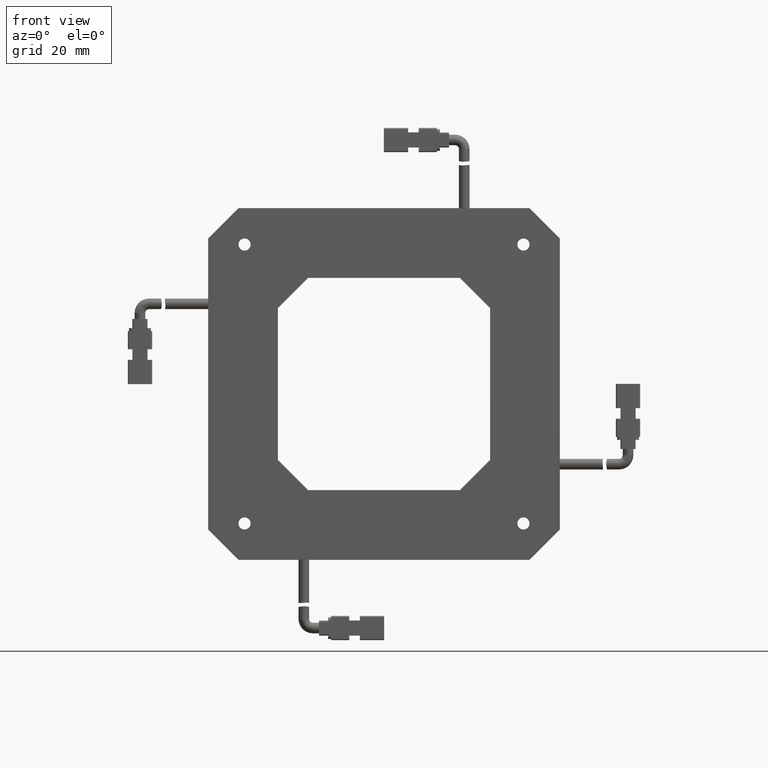
[diagram: clean part render]
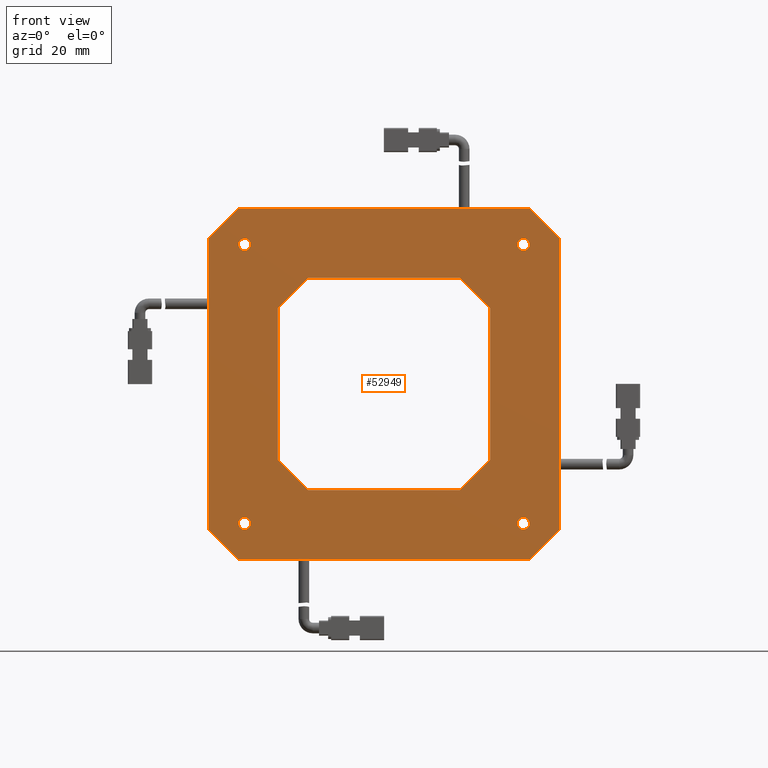
[diagram: same view with one face highlighted and labeled with its STEP entity id]
A machine part, front view. The second image highlights one B-rep face of the part: STEP entity #52949.
In plain terms, the highlighted planar face has unit normal (-0, -1, 0).
Its self-contained STEP definition (entity closure, byte-faithful):
#352 = CARTESIAN_POINT ( 'NONE',  ( -43.99999999999998600, -2.999999999999997300, -45.99999999999994300 ) ) ;
#799 = ORIENTED_EDGE ( 'NONE', *, *, #10398, .T. ) ;
#1731 = VERTEX_POINT ( 'NONE', #41590 ) ;
#1746 = CIRCLE ( 'NONE', #38907, 1.999999999999988000 ) ;
#1770 = AXIS2_PLACEMENT_3D ( 'NONE', #64085, #23416, #70861 ) ;
#1855 = AXIS2_PLACEMENT_3D ( 'NONE', #69324, #28721, #76096 ) ;
#2002 = CARTESIAN_POINT ( 'NONE',  ( -47.99999999999995700, -2.999999999999997300, 58.00000000000000700 ) ) ;
#2009 = CIRCLE ( 'NONE', #1855, 1.999999999999980900 ) ;
#3046 = LINE ( 'NONE', #71690, #70954 ) ;
#3352 = CARTESIAN_POINT ( 'NONE',  ( 44.00000000000002800, -3.000000000000002700, 45.99999999999996400 ) ) ;
#3486 = FACE_BOUND ( 'NONE', #12560, .T. ) ;
#3509 = VECTOR ( 'NONE', #28944, 1000.000000000000000 ) ;
#3535 = CARTESIAN_POINT ( 'NONE',  ( 44.00000000000002800, -3.000000000000002700, -45.99999999999996400 ) ) ;
#3848 = ORIENTED_EDGE ( 'NONE', *, *, #60590, .T. ) ;
#4416 = VECTOR ( 'NONE', #71666, 1000.000000000000000 ) ;
#5052 = EDGE_CURVE ( 'NONE', #63135, #72615, #2009, .T. ) ;
#5155 = EDGE_LOOP ( 'NONE', ( #27881, #61520 ) ) ;
#5632 = FACE_BOUND ( 'NONE', #61344, .T. ) ;
#5660 = LINE ( 'NONE', #55926, #3509 ) ;
#5911 = CARTESIAN_POINT ( 'NONE',  ( -34.99999999999999300, -2.999999999999998200, 25.00000000000001400 ) ) ;
#6114 = DIRECTION ( 'NONE',  ( -1.000000000000000000, 5.551115123125760500E-017, -7.885175750095784300E-018 ) ) ;
#6508 = DIRECTION ( 'NONE',  ( -1.000000000000000000, 0.0000000000000000000, 0.0000000000000000000 ) ) ;
#7317 = VERTEX_POINT ( 'NONE', #29171 ) ;
#7333 = CARTESIAN_POINT ( 'NONE',  ( -24.99999999999991100, -2.999999999999998700, 35.00000000000000000 ) ) ;
#7604 = CARTESIAN_POINT ( 'NONE',  ( 47.99999999999998600, -3.000000000000002700, 45.99999999999996400 ) ) ;
#8263 = VERTEX_POINT ( 'NONE', #352 ) ;
#8301 = VECTOR ( 'NONE', #54806, 1000.000000000000000 ) ;
#8871 = ORIENTED_EDGE ( 'NONE', *, *, #31235, .T. ) ;
#9109 = EDGE_LOOP ( 'NONE', ( #87759, #13671 ) ) ;
#9623 = CARTESIAN_POINT ( 'NONE',  ( -47.99999999999997200, -2.999999999999997300, 58.00000000000000700 ) ) ;
#10027 = VECTOR ( 'NONE', #79834, 1000.000000000000000 ) ;
#10398 = EDGE_CURVE ( 'NONE', #1731, #47372, #73803, .T. ) ;
#10404 = LINE ( 'NONE', #41147, #8301 ) ;
#11114 = CARTESIAN_POINT ( 'NONE',  ( 48.00000000000000700, -3.000000000000002700, 58.00000000000000700 ) ) ;
#12135 = DIRECTION ( 'NONE',  ( 5.551115123125761100E-017, 1.000000000000000000, -0.0000000000000000000 ) ) ;
#12286 = ORIENTED_EDGE ( 'NONE', *, *, #50918, .T. ) ;
#12560 = EDGE_LOOP ( 'NONE', ( #22120, #23089 ) ) ;
#12817 = EDGE_CURVE ( 'NONE', #42419, #70159, #1746, .T. ) ;
#12859 = ORIENTED_EDGE ( 'NONE', *, *, #48546, .T. ) ;
#13602 = CARTESIAN_POINT ( 'NONE',  ( -45.99999999999998600, -2.999999999999997300, -45.99999999999994300 ) ) ;
#13671 = ORIENTED_EDGE ( 'NONE', *, *, #5052, .T. ) ;
#13718 = VECTOR ( 'NONE', #37900, 1000.000000000000000 ) ;
#16219 = ORIENTED_EDGE ( 'NONE', *, *, #65367, .T. ) ;
#17291 = CARTESIAN_POINT ( 'NONE',  ( -46.00000000000000000, -2.999999999999997300, 45.99999999999992900 ) ) ;
#17409 = LINE ( 'NONE', #22162, #33306 ) ;
#17717 = LINE ( 'NONE', #57677, #87600 ) ;
#18604 = VERTEX_POINT ( 'NONE', #2002 ) ;
#18738 = CARTESIAN_POINT ( 'NONE',  ( 47.99999999999995700, -3.000000000000002700, -57.99999999999999300 ) ) ;
#20195 = LINE ( 'NONE', #9623, #56283 ) ;
#20416 = DIRECTION ( 'NONE',  ( -1.000000000000000000, 0.0000000000000000000, 0.0000000000000000000 ) ) ;
#21497 = EDGE_CURVE ( 'NONE', #8263, #58179, #49487, .T. ) ;
#21582 = FACE_BOUND ( 'NONE', #71923, .T. ) ;
#21944 = AXIS2_PLACEMENT_3D ( 'NONE', #73368, #32784, #80170 ) ;
#22120 = ORIENTED_EDGE ( 'NONE', *, *, #70951, .T. ) ;
#22162 = CARTESIAN_POINT ( 'NONE',  ( 35.00000000000002100, -3.000000000000001800, -25.00000000000001400 ) ) ;
#22567 = AXIS2_PLACEMENT_3D ( 'NONE', #17291, #64715, #24076 ) ;
#22867 = EDGE_CURVE ( 'NONE', #58376, #60661, #45789, .T. ) ;
#23089 = ORIENTED_EDGE ( 'NONE', *, *, #31037, .T. ) ;
#23416 = DIRECTION ( 'NONE',  ( 5.551115123125761100E-017, 1.000000000000000000, -0.0000000000000000000 ) ) ;
#23663 = AXIS2_PLACEMENT_3D ( 'NONE', #28291, #75673, #35080 ) ;
#24076 = DIRECTION ( 'NONE',  ( -1.000000000000000000, 0.0000000000000000000, 0.0000000000000000000 ) ) ;
#25051 = CARTESIAN_POINT ( 'NONE',  ( -34.99999999999999300, -2.999999999999998200, -24.99999999999995000 ) ) ;
#25568 = ORIENTED_EDGE ( 'NONE', *, *, #70107, .T. ) ;
#26888 = VECTOR ( 'NONE', #34101, 1000.000000000000000 ) ;
#27495 = DIRECTION ( 'NONE',  ( 7.885175750095784300E-018, -4.377151835486122500E-034, -1.000000000000000000 ) ) ;
#27805 = CARTESIAN_POINT ( 'NONE',  ( -57.99999999999997900, -2.999999999999996900, 58.00000000000000000 ) ) ;
#27881 = ORIENTED_EDGE ( 'NONE', *, *, #12817, .T. ) ;
#28124 = LINE ( 'NONE', #59426, #10027 ) ;
#28291 = CARTESIAN_POINT ( 'NONE',  ( -45.99999999999998600, -2.999999999999997300, -45.99999999999994300 ) ) ;
#28721 = DIRECTION ( 'NONE',  ( 5.551115123125761100E-017, 1.000000000000000000, -0.0000000000000000000 ) ) ;
#28944 = DIRECTION ( 'NONE',  ( 0.7071067811865441300, -3.925231146709404000E-017, -0.7071067811865510100 ) ) ;
#29000 = DIRECTION ( 'NONE',  ( -0.7071067811865510100, 3.925231146709441600E-017, -0.7071067811865441300 ) ) ;
#29041 = LINE ( 'NONE', #54253, #26888 ) ;
#29171 = CARTESIAN_POINT ( 'NONE',  ( 58.00000000000000700, -3.000000000000003100, 47.99999999999995700 ) ) ;
#29908 = VECTOR ( 'NONE', #83839, 1000.000000000000000 ) ;
#30444 = LINE ( 'NONE', #73699, #46320 ) ;
#30920 = ORIENTED_EDGE ( 'NONE', *, *, #86300, .T. ) ;
#31037 = EDGE_CURVE ( 'NONE', #54118, #74088, #83647, .T. ) ;
#31235 = EDGE_CURVE ( 'NONE', #44433, #68829, #10404, .T. ) ;
#32071 = VECTOR ( 'NONE', #87060, 1000.000000000000000 ) ;
#32433 = CARTESIAN_POINT ( 'NONE',  ( 35.00000000000001400, -3.000000000000001800, 24.99999999999996100 ) ) ;
#32578 = CARTESIAN_POINT ( 'NONE',  ( -46.00000000000000000, -2.999999999999997300, 45.99999999999992900 ) ) ;
#32784 = DIRECTION ( 'NONE',  ( -5.551115123125760500E-017, -1.000000000000000000, 0.0000000000000000000 ) ) ;
#33094 = EDGE_CURVE ( 'NONE', #40447, #58376, #86046, .T. ) ;
#33306 = VECTOR ( 'NONE', #29000, 1000.000000000000000 ) ;
#33962 = AXIS2_PLACEMENT_3D ( 'NONE', #87648, #47171, #6508 ) ;
#34101 = DIRECTION ( 'NONE',  ( -0.7071067811865445800, 3.925231146709405900E-017, 0.7071067811865504600 ) ) ;
#34640 = CARTESIAN_POINT ( 'NONE',  ( 48.00000000000000000, -3.000000000000002700, -45.99999999999996400 ) ) ;
#35080 = DIRECTION ( 'NONE',  ( -1.000000000000000000, 0.0000000000000000000, 0.0000000000000000000 ) ) ;
#36003 = ORIENTED_EDGE ( 'NONE', *, *, #41733, .T. ) ;
#36319 = EDGE_CURVE ( 'NONE', #72615, #63135, #44828, .T. ) ;
#37304 = CARTESIAN_POINT ( 'NONE',  ( 57.99999999999997900, -3.000000000000003100, 58.00000000000000700 ) ) ;
#37830 = EDGE_CURVE ( 'NONE', #70305, #70464, #29041, .T. ) ;
#37900 = DIRECTION ( 'NONE',  ( -1.000000000000000000, 5.551115123125760500E-017, -7.885175750095784300E-018 ) ) ;
#38907 = AXIS2_PLACEMENT_3D ( 'NONE', #52802, #12135, #59598 ) ;
#39393 = DIRECTION ( 'NONE',  ( -1.000000000000000000, 0.0000000000000000000, 0.0000000000000000000 ) ) ;
#40447 = VERTEX_POINT ( 'NONE', #81928 ) ;
#41147 = CARTESIAN_POINT ( 'NONE',  ( 35.00000000000001400, -3.000000000000001800, 58.00000000000000000 ) ) ;
#41590 = CARTESIAN_POINT ( 'NONE',  ( -57.99999999999997900, -2.999999999999996900, 48.00000000000004300 ) ) ;
#41650 = CARTESIAN_POINT ( 'NONE',  ( -48.00000000000000000, -2.999999999999997300, 45.99999999999992900 ) ) ;
#41733 = EDGE_CURVE ( 'NONE', #60661, #44433, #5660, .T. ) ;
#41766 = CARTESIAN_POINT ( 'NONE',  ( 58.00000000000000700, -3.000000000000003100, 47.99999999999996400 ) ) ;
#42240 = ORIENTED_EDGE ( 'NONE', *, *, #87157, .T. ) ;
#42419 = VERTEX_POINT ( 'NONE', #3535 ) ;
#43267 = CARTESIAN_POINT ( 'NONE',  ( 57.99999999999997900, -3.000000000000003100, 34.99999999999999300 ) ) ;
#44433 = VERTEX_POINT ( 'NONE', #32433 ) ;
#44828 = CIRCLE ( 'NONE', #1770, 1.999999999999980900 ) ;
#45789 = LINE ( 'NONE', #43267, #29908 ) ;
#45898 = VERTEX_POINT ( 'NONE', #83699 ) ;
#46128 = PLANE ( 'NONE',  #21944 ) ;
#46224 = CARTESIAN_POINT ( 'NONE',  ( -47.99999999999998600, -2.999999999999997300, -45.99999999999994300 ) ) ;
#46320 = VECTOR ( 'NONE', #6114, 1000.000000000000000 ) ;
#47171 = DIRECTION ( 'NONE',  ( 5.551115123125761100E-017, 1.000000000000000000, -0.0000000000000000000 ) ) ;
#47372 = VERTEX_POINT ( 'NONE', #67990 ) ;
#47685 = CIRCLE ( 'NONE', #33962, 1.999999999999988000 ) ;
#48546 = EDGE_CURVE ( 'NONE', #47372, #78118, #17717, .T. ) ;
#48782 = AXIS2_PLACEMENT_3D ( 'NONE', #13602, #61055, #20416 ) ;
#49487 = CIRCLE ( 'NONE', #48782, 2.000000000000001800 ) ;
#49825 = LINE ( 'NONE', #37304, #13718 ) ;
#50866 = VERTEX_POINT ( 'NONE', #54547 ) ;
#50918 = EDGE_CURVE ( 'NONE', #7317, #87749, #60354, .T. ) ;
#51458 = LINE ( 'NONE', #87309, #84261 ) ;
#52640 = AXIS2_PLACEMENT_3D ( 'NONE', #32578, #79965, #39393 ) ;
#52802 = CARTESIAN_POINT ( 'NONE',  ( 46.00000000000001400, -3.000000000000002700, -45.99999999999996400 ) ) ;
#52949 = ADVANCED_FACE ( 'NONE', ( #5632, #57647, #21582, #3486, #73513, #55525 ), #46128, .T. ) ;
#53679 = VECTOR ( 'NONE', #27495, 1000.000000000000000 ) ;
#54118 = VERTEX_POINT ( 'NONE', #78004 ) ;
#54253 = CARTESIAN_POINT ( 'NONE',  ( -24.99999999999999300, -2.999999999999998700, -35.00000000000002100 ) ) ;
#54547 = CARTESIAN_POINT ( 'NONE',  ( 58.00000000000000700, -3.000000000000003100, -47.99999999999999300 ) ) ;
#54806 = DIRECTION ( 'NONE',  ( 7.885175750095784300E-018, -4.377151835486122500E-034, -1.000000000000000000 ) ) ;
#55525 = FACE_BOUND ( 'NONE', #5155, .T. ) ;
#55926 = CARTESIAN_POINT ( 'NONE',  ( 25.00000000000007100, -3.000000000000001300, 35.00000000000000000 ) ) ;
#56160 = ORIENTED_EDGE ( 'NONE', *, *, #70281, .T. ) ;
#56271 = CIRCLE ( 'NONE', #23663, 2.000000000000001800 ) ;
#56283 = VECTOR ( 'NONE', #57122, 1000.000000000000200 ) ;
#57122 = DIRECTION ( 'NONE',  ( -0.7071067811865492400, 3.925231146709431100E-017, -0.7071067811865458000 ) ) ;
#57647 = FACE_OUTER_BOUND ( 'NONE', #82165, .T. ) ;
#57677 = CARTESIAN_POINT ( 'NONE',  ( -57.99999999999997900, -2.999999999999996900, -48.00000000000000700 ) ) ;
#57914 = ORIENTED_EDGE ( 'NONE', *, *, #82255, .T. ) ;
#58179 = VERTEX_POINT ( 'NONE', #46224 ) ;
#58376 = VERTEX_POINT ( 'NONE', #7333 ) ;
#58584 = LINE ( 'NONE', #64874, #4416 ) ;
#59426 = CARTESIAN_POINT ( 'NONE',  ( -34.99999999999999300, -2.999999999999998200, 58.00000000000000000 ) ) ;
#59598 = DIRECTION ( 'NONE',  ( -1.000000000000000000, 0.0000000000000000000, 0.0000000000000000000 ) ) ;
#59627 = ORIENTED_EDGE ( 'NONE', *, *, #22867, .T. ) ;
#59679 = EDGE_CURVE ( 'NONE', #70464, #40447, #28124, .T. ) ;
#60165 = ORIENTED_EDGE ( 'NONE', *, *, #80903, .T. ) ;
#60354 = LINE ( 'NONE', #41766, #76213 ) ;
#60590 = EDGE_CURVE ( 'NONE', #87749, #18604, #49825, .T. ) ;
#60661 = VERTEX_POINT ( 'NONE', #86716 ) ;
#60829 = ORIENTED_EDGE ( 'NONE', *, *, #21497, .T. ) ;
#61055 = DIRECTION ( 'NONE',  ( 5.551115123125761100E-017, 1.000000000000000000, -0.0000000000000000000 ) ) ;
#61344 = EDGE_LOOP ( 'NONE', ( #62815, #64644, #59627, #36003, #8871, #56160, #57914, #79731 ) ) ;
#61520 = ORIENTED_EDGE ( 'NONE', *, *, #86773, .T. ) ;
#62815 = ORIENTED_EDGE ( 'NONE', *, *, #59679, .T. ) ;
#63135 = VERTEX_POINT ( 'NONE', #7604 ) ;
#64085 = CARTESIAN_POINT ( 'NONE',  ( 46.00000000000000700, -3.000000000000002700, 45.99999999999996400 ) ) ;
#64644 = ORIENTED_EDGE ( 'NONE', *, *, #33094, .T. ) ;
#64715 = DIRECTION ( 'NONE',  ( 5.551115123125761100E-017, 1.000000000000000000, -0.0000000000000000000 ) ) ;
#64874 = CARTESIAN_POINT ( 'NONE',  ( 57.99999999999997900, -3.000000000000003100, -58.00000000000000000 ) ) ;
#64974 = VERTEX_POINT ( 'NONE', #18738 ) ;
#65367 = EDGE_CURVE ( 'NONE', #50866, #7317, #3046, .T. ) ;
#67990 = CARTESIAN_POINT ( 'NONE',  ( -57.99999999999999300, -2.999999999999996900, -48.00000000000000000 ) ) ;
#68829 = VERTEX_POINT ( 'NONE', #83721 ) ;
#69324 = CARTESIAN_POINT ( 'NONE',  ( 46.00000000000000700, -3.000000000000002700, 45.99999999999996400 ) ) ;
#70107 = EDGE_CURVE ( 'NONE', #64974, #50866, #51458, .T. ) ;
#70159 = VERTEX_POINT ( 'NONE', #34640 ) ;
#70220 = CIRCLE ( 'NONE', #22567, 2.000000000000001800 ) ;
#70281 = EDGE_CURVE ( 'NONE', #68829, #45898, #17409, .T. ) ;
#70305 = VERTEX_POINT ( 'NONE', #76382 ) ;
#70464 = VERTEX_POINT ( 'NONE', #25051 ) ;
#70861 = DIRECTION ( 'NONE',  ( -1.000000000000000000, 0.0000000000000000000, 0.0000000000000000000 ) ) ;
#70951 = EDGE_CURVE ( 'NONE', #74088, #54118, #70220, .T. ) ;
#70954 = VECTOR ( 'NONE', #78496, 1000.000000000000000 ) ;
#71277 = DIRECTION ( 'NONE',  ( 0.7071067811865455700, -3.925231146709410800E-017, -0.7071067811865493500 ) ) ;
#71568 = CARTESIAN_POINT ( 'NONE',  ( -48.00000000000003600, -2.999999999999997300, -57.99999999999999300 ) ) ;
#71666 = DIRECTION ( 'NONE',  ( 1.000000000000000000, -5.551115123125760500E-017, 7.885175750095784300E-018 ) ) ;
#71690 = CARTESIAN_POINT ( 'NONE',  ( 58.00000000000000700, -3.000000000000003100, 58.00000000000000000 ) ) ;
#71923 = EDGE_LOOP ( 'NONE', ( #30920, #60829 ) ) ;
#72615 = VERTEX_POINT ( 'NONE', #3352 ) ;
#73368 = CARTESIAN_POINT ( 'NONE',  ( 57.99999999999997900, -3.000000000000003100, 58.00000000000000000 ) ) ;
#73513 = FACE_BOUND ( 'NONE', #9109, .T. ) ;
#73699 = CARTESIAN_POINT ( 'NONE',  ( 57.99999999999997900, -3.000000000000003100, -35.00000000000002100 ) ) ;
#73803 = LINE ( 'NONE', #27805, #53679 ) ;
#74055 = DIRECTION ( 'NONE',  ( 0.7071067811865489100, -3.925231146709429900E-017, 0.7071067811865460200 ) ) ;
#74088 = VERTEX_POINT ( 'NONE', #41650 ) ;
#75555 = DIRECTION ( 'NONE',  ( -0.7071067811865463500, 3.925231146709415700E-017, 0.7071067811865487900 ) ) ;
#75673 = DIRECTION ( 'NONE',  ( 5.551115123125761100E-017, 1.000000000000000000, -0.0000000000000000000 ) ) ;
#76096 = DIRECTION ( 'NONE',  ( -1.000000000000000000, 0.0000000000000000000, 0.0000000000000000000 ) ) ;
#76213 = VECTOR ( 'NONE', #75555, 1000.000000000000000 ) ;
#76382 = CARTESIAN_POINT ( 'NONE',  ( -24.99999999999998600, -2.999999999999998700, -35.00000000000002800 ) ) ;
#78004 = CARTESIAN_POINT ( 'NONE',  ( -44.00000000000000000, -2.999999999999997300, 45.99999999999992900 ) ) ;
#78118 = VERTEX_POINT ( 'NONE', #71568 ) ;
#78496 = DIRECTION ( 'NONE',  ( -7.885175750095784300E-018, 4.377151835486122500E-034, 1.000000000000000000 ) ) ;
#79731 = ORIENTED_EDGE ( 'NONE', *, *, #37830, .T. ) ;
#79834 = DIRECTION ( 'NONE',  ( -7.885175750095784300E-018, 4.377151835486122500E-034, 1.000000000000000000 ) ) ;
#79965 = DIRECTION ( 'NONE',  ( 5.551115123125761100E-017, 1.000000000000000000, -0.0000000000000000000 ) ) ;
#80170 = DIRECTION ( 'NONE',  ( -1.000000000000000000, 5.551115123125760500E-017, -7.885175750095784300E-018 ) ) ;
#80903 = EDGE_CURVE ( 'NONE', #18604, #1731, #20195, .T. ) ;
#81928 = CARTESIAN_POINT ( 'NONE',  ( -34.99999999999999300, -2.999999999999998200, 25.00000000000002100 ) ) ;
#82165 = EDGE_LOOP ( 'NONE', ( #16219, #12286, #3848, #60165, #799, #12859, #42240, #25568 ) ) ;
#82255 = EDGE_CURVE ( 'NONE', #45898, #70305, #30444, .T. ) ;
#83647 = CIRCLE ( 'NONE', #52640, 2.000000000000001800 ) ;
#83699 = CARTESIAN_POINT ( 'NONE',  ( 24.99999999999991800, -3.000000000000001300, -35.00000000000002100 ) ) ;
#83721 = CARTESIAN_POINT ( 'NONE',  ( 35.00000000000001400, -3.000000000000001800, -25.00000000000002100 ) ) ;
#83839 = DIRECTION ( 'NONE',  ( 1.000000000000000000, -5.551115123125760500E-017, 7.885175750095784300E-018 ) ) ;
#84261 = VECTOR ( 'NONE', #74055, 1000.000000000000100 ) ;
#86046 = LINE ( 'NONE', #5911, #32071 ) ;
#86300 = EDGE_CURVE ( 'NONE', #58179, #8263, #56271, .T. ) ;
#86716 = CARTESIAN_POINT ( 'NONE',  ( 25.00000000000007100, -3.000000000000001300, 35.00000000000000000 ) ) ;
#86773 = EDGE_CURVE ( 'NONE', #70159, #42419, #47685, .T. ) ;
#87060 = DIRECTION ( 'NONE',  ( 0.7071067811865504600, -3.925231146709438500E-017, 0.7071067811865445800 ) ) ;
#87157 = EDGE_CURVE ( 'NONE', #78118, #64974, #58584, .T. ) ;
#87309 = CARTESIAN_POINT ( 'NONE',  ( 47.99999999999995700, -3.000000000000002700, -57.99999999999998600 ) ) ;
#87600 = VECTOR ( 'NONE', #71277, 1000.000000000000100 ) ;
#87648 = CARTESIAN_POINT ( 'NONE',  ( 46.00000000000001400, -3.000000000000002700, -45.99999999999996400 ) ) ;
#87749 = VERTEX_POINT ( 'NONE', #11114 ) ;
#87759 = ORIENTED_EDGE ( 'NONE', *, *, #36319, .T. ) ;